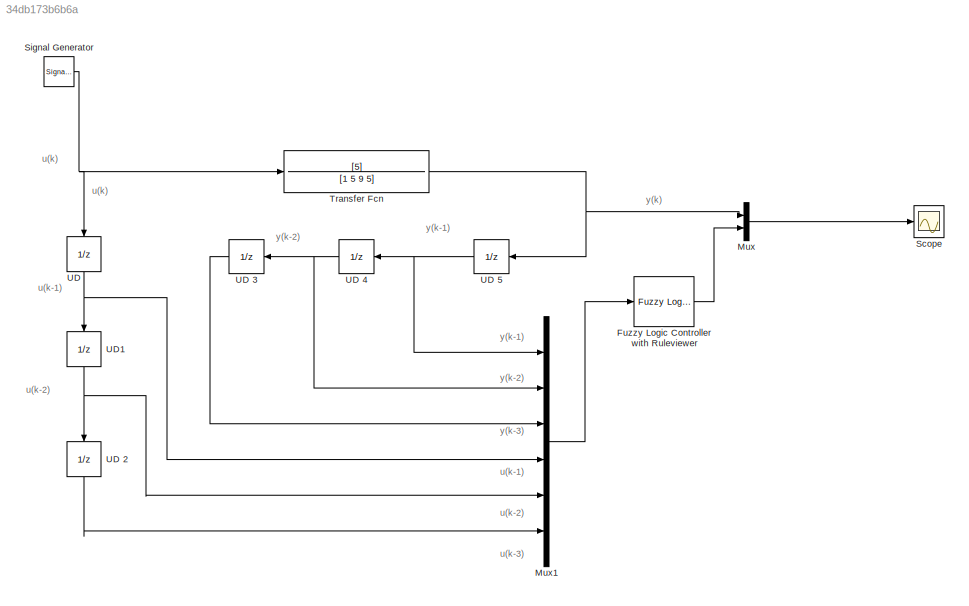
MODEL slx_34db173b6b6a
KIND model
CONFIG AbsTol = auto
CONFIG EnableMultiTasking = off
CONFIG FixedStep = auto
CONFIG MaxStep = auto
CONFIG MinStep = auto
CONFIG RelTol = 1e-3
CONFIG SampleTimeConstraint = Unconstrained
CONFIG SolverName = VariableStepAuto
CONFIG StartTime = 0.0
CONFIG StopTime = 20
BLOCK [Reference] Fuzzy Logic Controller with Ruleviewer  REF=fuzblock/Fuzzy Logic   (lib defined in mdl_858b3b3e7478)
Controller 
with Ruleviewer
  SourceBlock = fuzblock/Fuzzy Logic \nController \nwith Ruleviewer
  SourceType = Fuzzy Inference System
BLOCK [Mux] Mux
  DisplayOption = bar
  Inputs = 2
BLOCK [Mux] Mux1
  DisplayOption = bar
  Inputs = 6
BLOCK [Scope] Scope
  Floating = off
  NumInputPorts = 1
  ScopeSpecificationString = Simulink.scopes.TimeScopeBlockCfg('CurrentConfiguration', extmgr.ConfigurationSet(extmgr.Configuration('Core','General UI',true),extmgr.Configuration('Core','Source UI',true),extmgr.Configuration('Sources','WiredSimulink',true),extmgr.Configuration('Visuals','Time Domain',true,'SerializedDisplays',{struct('MinYLimReal','-0.62646','MaxYLimReal','0.62846','YLabelReal','','MinYLimMag','0.00000','MaxY...<+1403ch>
BLOCK [SignalGenerator] Signal Generator
  Units = rad/sec
  WaveForm = sawtooth
BLOCK [TransferFcn] Transfer Fcn
  Denominator = [1 5 9 5]
  Numerator = [5]
BLOCK [UnitDelay] UD 
  HasFrameUpgradeWarning = on
  NameLocation = left
  SampleTime = 0.1
BLOCK [UnitDelay] UD 2
  HasFrameUpgradeWarning = on
  NameLocation = left
  SampleTime = -1
BLOCK [UnitDelay] UD 3
  HasFrameUpgradeWarning = on
  NameLocation = top
  SampleTime = -1
BLOCK [UnitDelay] UD 4
  HasFrameUpgradeWarning = on
  NameLocation = top
  SampleTime = -1
BLOCK [UnitDelay] UD 5
  HasFrameUpgradeWarning = on
  NameLocation = top
  SampleTime = -1
BLOCK [UnitDelay] UD1
  HasFrameUpgradeWarning = on
  NameLocation = left
  SampleTime = -1
ANNOTATION (root): u(k)
ANNOTATION (root): u(k-1)
ANNOTATION (root): u(k-2)
ANNOTATION (root): u(k-3)
ANNOTATION (root): y(k)
ANNOTATION (root): y(k-1)
ANNOTATION (root): y(k-2)
ANNOTATION (root): y(k-3)
LINE Fuzzy Logic Controller with Ruleviewer:1 -> Mux:2
LINE Mux1:1 -> Fuzzy Logic Controller with Ruleviewer:1
LINE Mux:1 -> Scope:1
NET Signal Generator:1 -> Transfer Fcn:1, UD :1
NET Transfer Fcn:1 -> Mux:1, UD 5:1
LINE UD 2:1 -> Mux1:6
LINE UD 3:1 -> Mux1:3
NET UD 4:1 -> Mux1:2, UD 3:1
NET UD 5:1 -> Mux1:1, UD 4:1
NET UD :1 -> Mux1:4, UD1:1
NET UD1:1 -> Mux1:5, UD 2:1
note: NET lines group one-source signal fan-out (src -> all destinations, sorted); 1:1 wires keep LINE
